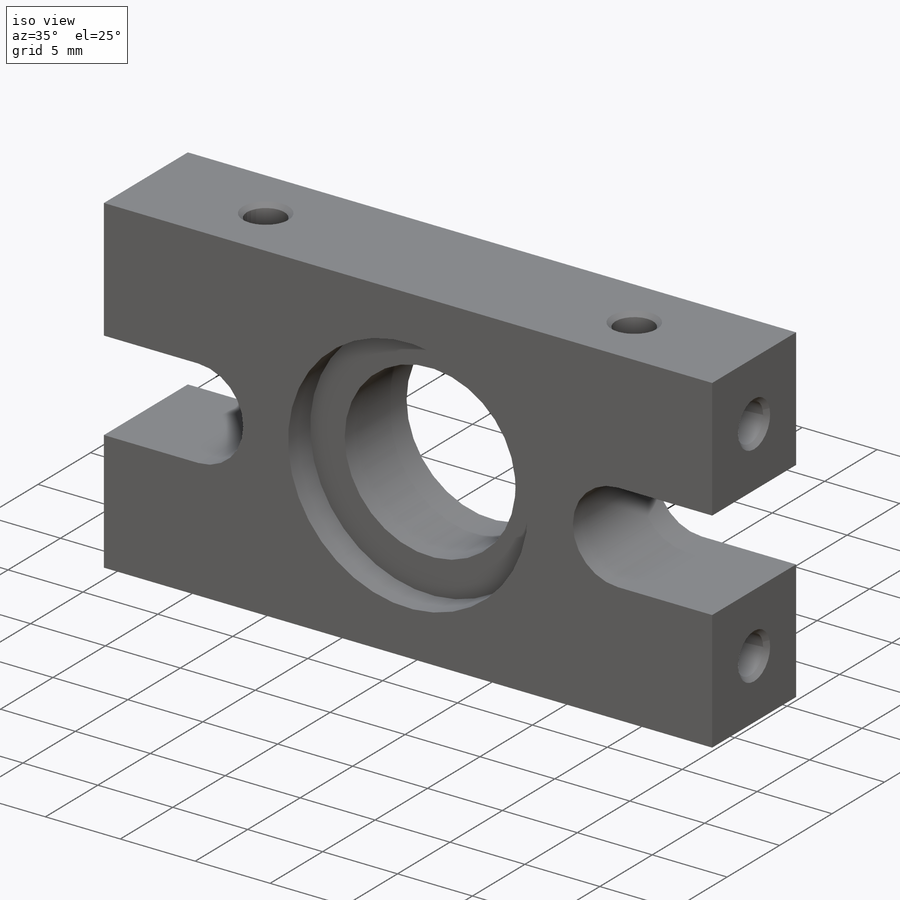
[diagram: iso view]
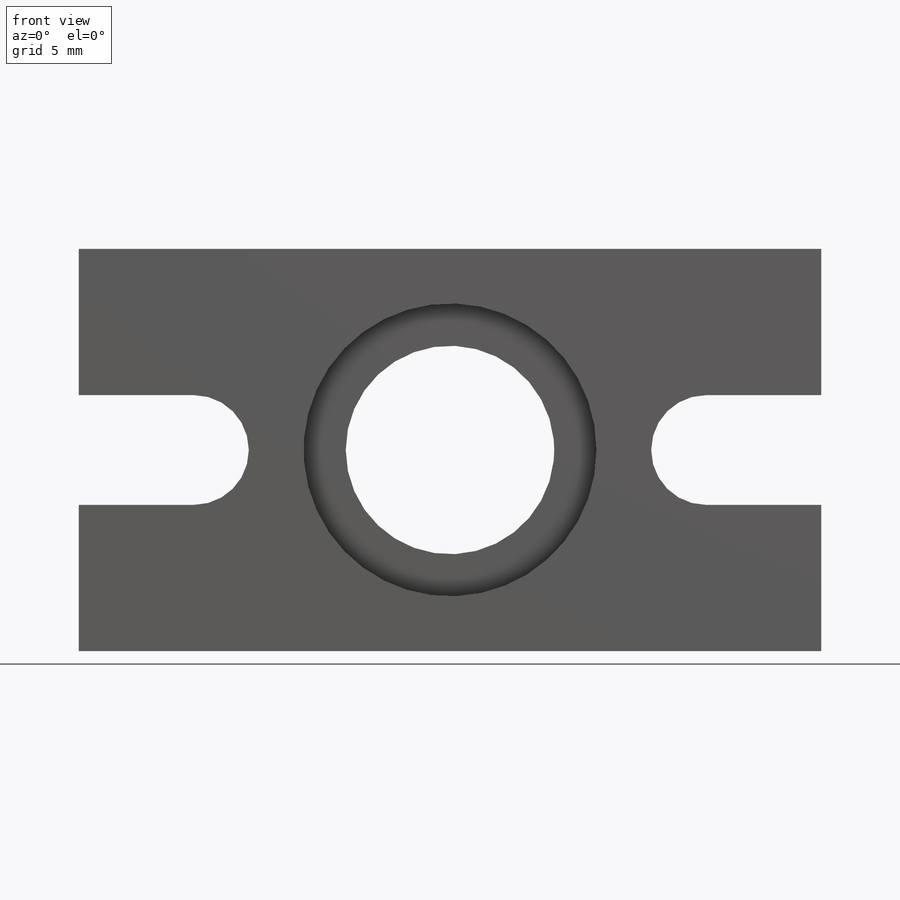
[diagram: front view]
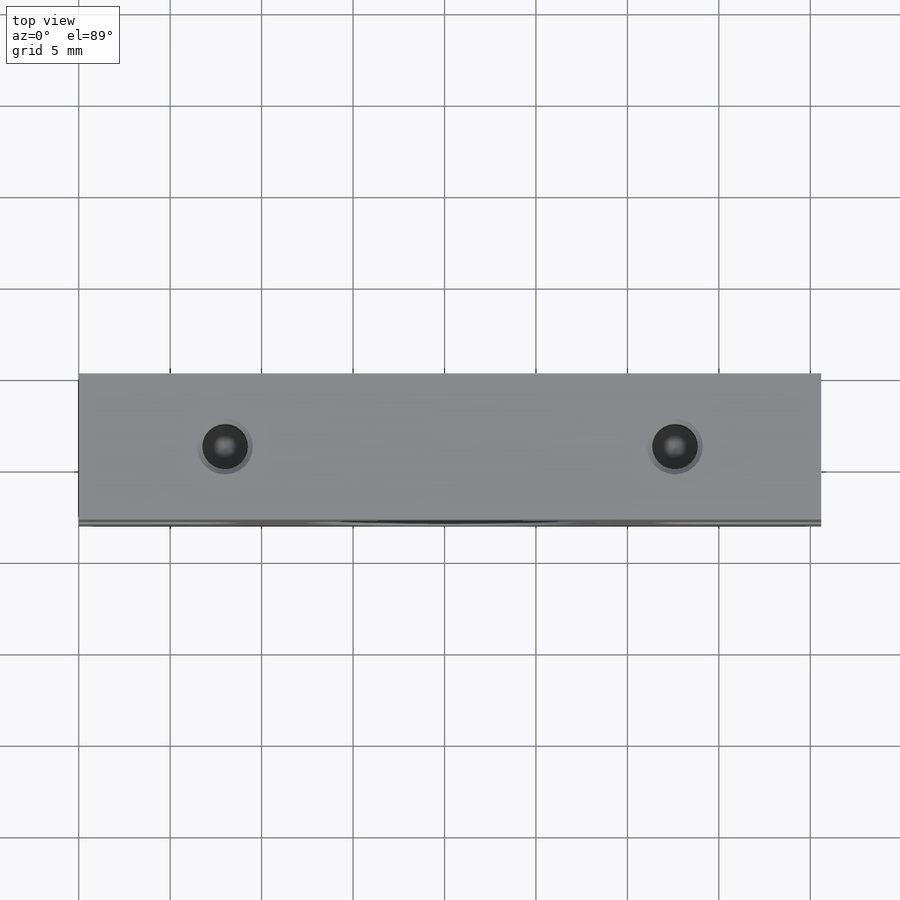
[diagram: top view]
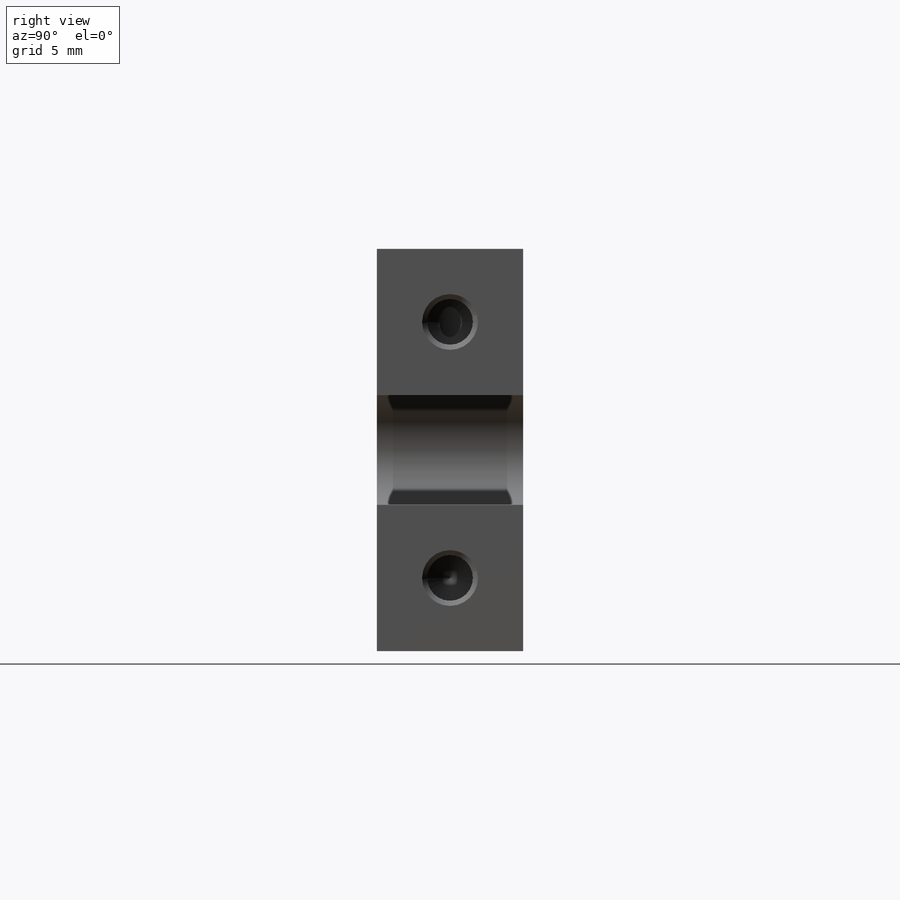
[diagram: right view]
SOLIDWORKS PART (.sldprt)
format: sldprt  version: not decoded by parser v0  size: 310,784 bytes
history: native  units: mm
features: sketch x6, mirror x3, plane x2, hole x2, thread x2, material x1, extrude x1, cut_extrude x1 (+11 scaffold rows collapsed)
feature tree (29):
  scaffold x11  (default folders/planes/origin — collapsed)
  material  "1060 Alloy"
  sketch  "Sketch1"  dims[c1.D3=6.0mm c1.D5=6.0mm c1.D7=11.4mm c1.D1=40.6mm c1.D2=22.0mm c1.D4=6.3mm c2.D5=11.0mm c2.D6=6.0mm]
  extrude  "Boss-Extrude1"  Depth=8mm
  sketch  "Sketch2"  dims[D1=16.01mm]
  cut_extrude  "Cut-Extrude1"  Depth=2.1mm
  plane  "Plane1"
  plane  "Plane2"
  hole  "M3x0.5 Tapped Hole1"  Diameter=2.5mm Depth=5mm
  sketch  "Sketch4"  dims[D1=8.0mm D2=4.0mm]
  sketch  "Sketch3"  dims[hole-wizard template sketch: 46 standard entries collapsed; hole parameters above]
  thread  "Hole Thread1"  Diameter=5mm  [1 undecoded]
  mirror  "Mirror1"
  hole  "M3x0.5 Tapped Hole2"  Diameter=2.5mm Depth=6.5mm
  sketch  "Sketch6"  dims[c1.D1=4.0mm c2.D1=4.0mm c2.D2=4.0mm]
  sketch  "Sketch5"  dims[hole-wizard template sketch: 40 standard entries collapsed; hole parameters kept: c13.Tap Drill Depth=6.5mm c13.Near C'Sink Dia.=3.05mm c13.D4=~33.297463mm c13.Near C'Sink Angle=90.0deg c14.D5=~14.816244mm c14.Drill Angle=118.0deg]
  thread  "Hole Thread4"  Diameter=5mm  [1 undecoded]
  mirror  "Mirror2"
  mirror  "Mirror3"
decode coverage: 12 of 15 modeling features carry decoded parameters
note: ~ marks probable driven/reference dimensions
note: 2 parameter values undecoded
note: suppression state not decoded; provenance and decode notes live in map.json
